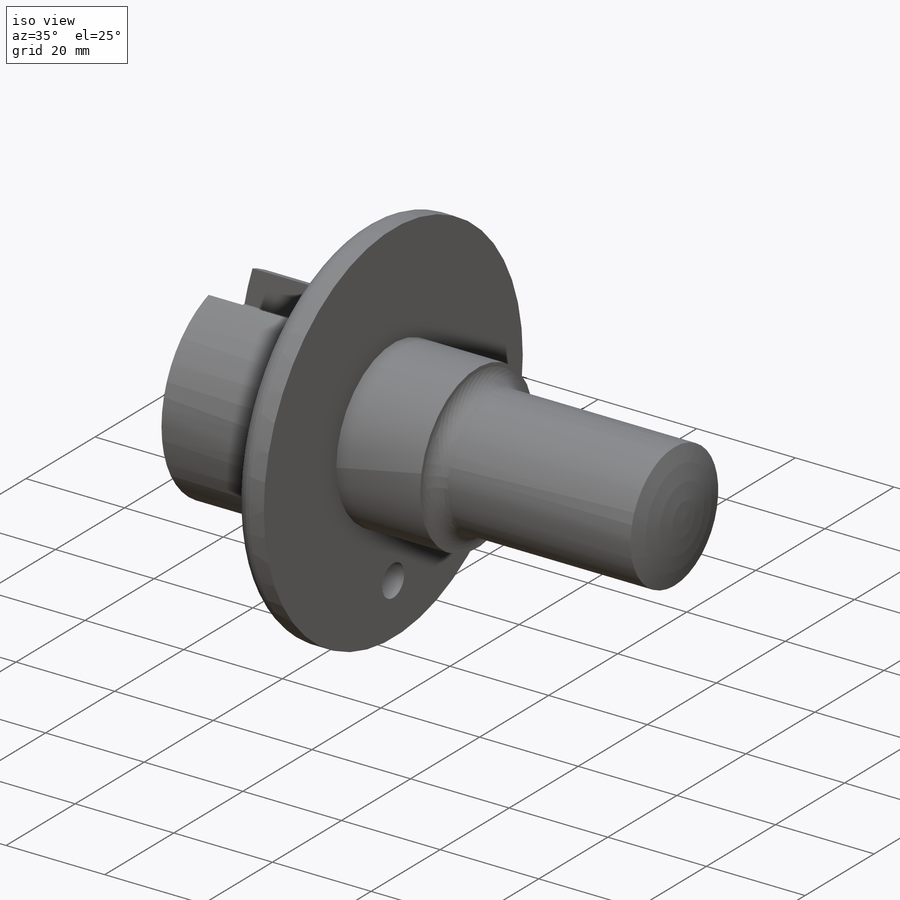
[diagram: iso view]
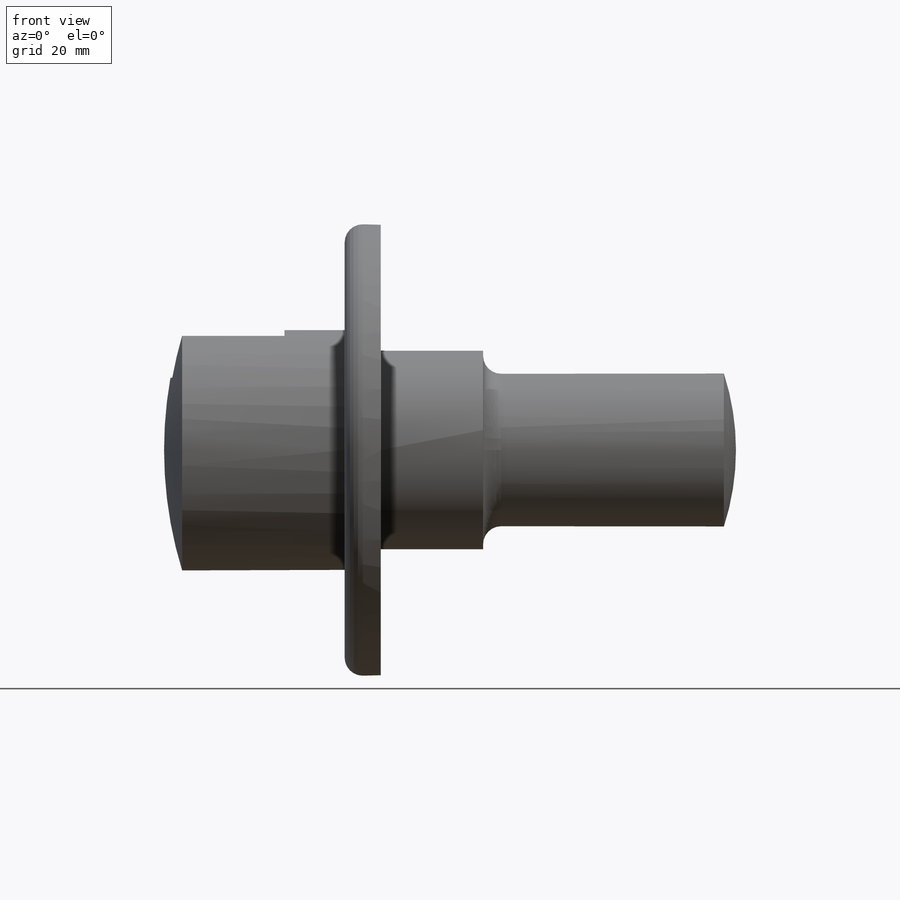
[diagram: front view]
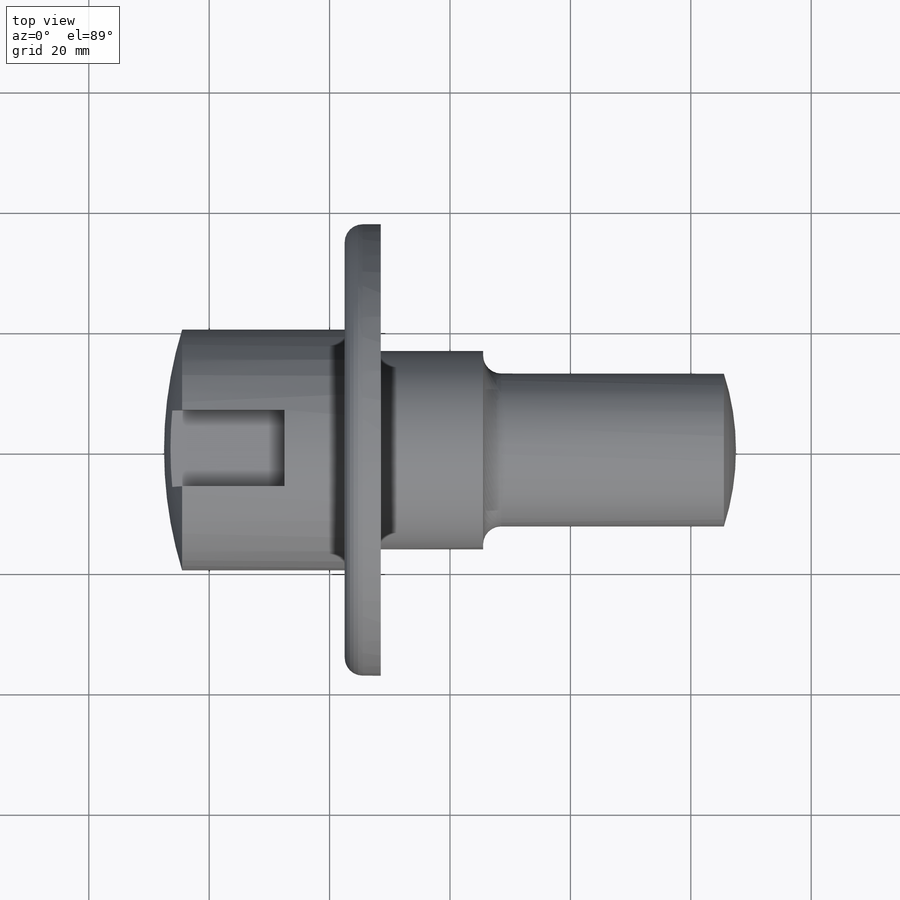
[diagram: top view]
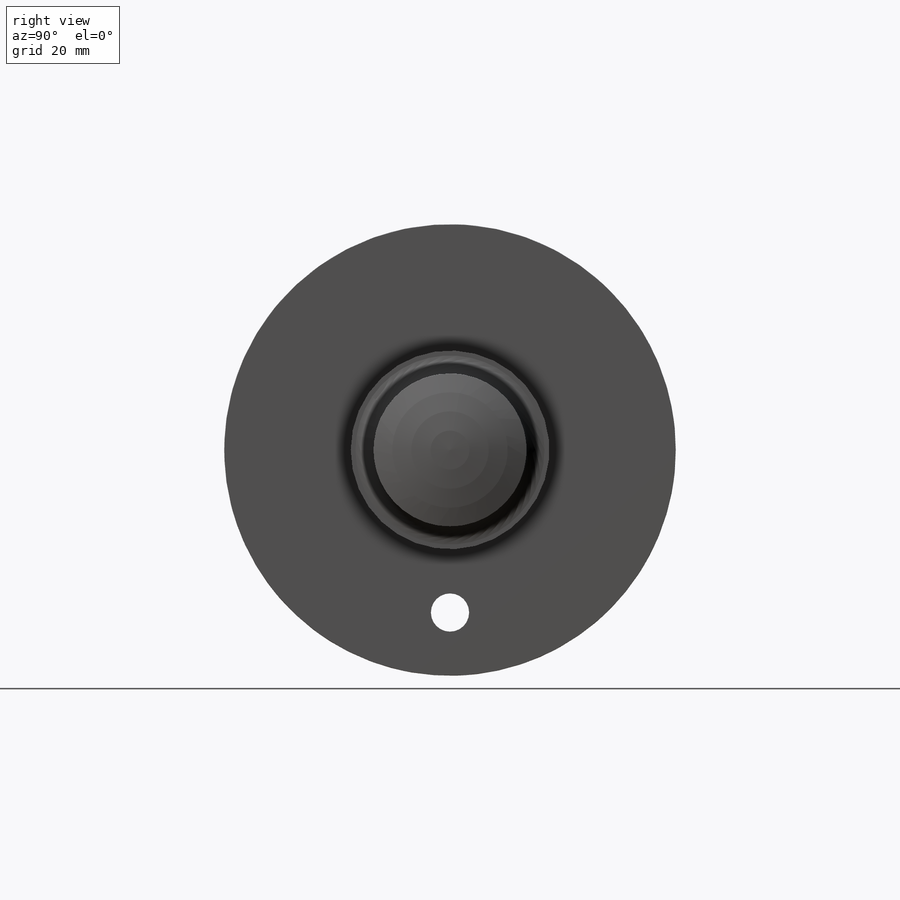
[diagram: right view]
SOLIDWORKS PART (.sldprt)
format: sldprt  version: not decoded by parser v0  size: 231,936 bytes
history: native  units: mm
features: plane x4, sketch x3, cut_extrude x2, material x1, revolve x1, fillet x1 (+13 scaffold rows collapsed)
feature tree (25):
  scaffold x13  (default folders/planes/origin — collapsed)
  material  "AISI 1020"
  plane  "Plano frontal"
  plane  "Plano superior"
  plane  "Plano direito"
  sketch  "Esboço1"  dims[D1=3.0mm D2=2.0mm D3=95.0mm D4=39.0mm D5=33.0mm D6=75.0mm D7=40.0mm D8=30.0mm D9=3.0mm D10=6.0mm D11=25.4mm]
  revolve  "Revolução1"  Angle=360deg
  fillet  "Filete1"  Radius=3mm
  plane  "Plano1"
  sketch  "Esboço2"  dims[D1=8.0mm D2=12.7mm]
  cut_extrude  "Corte-extrusão1"  Depth=20mm
  sketch  "Esboço3"  dims[c1.D1=~4.147397mm c1.D2=6.35mm c2.D1=27.0mm]
  cut_extrude  "Corte-extrusão2"  Depth=20mm
decode coverage: 7 of 7 modeling features carry decoded parameters
note: ~ marks probable driven/reference dimensions
note: suppression state not decoded; provenance and decode notes live in map.json
